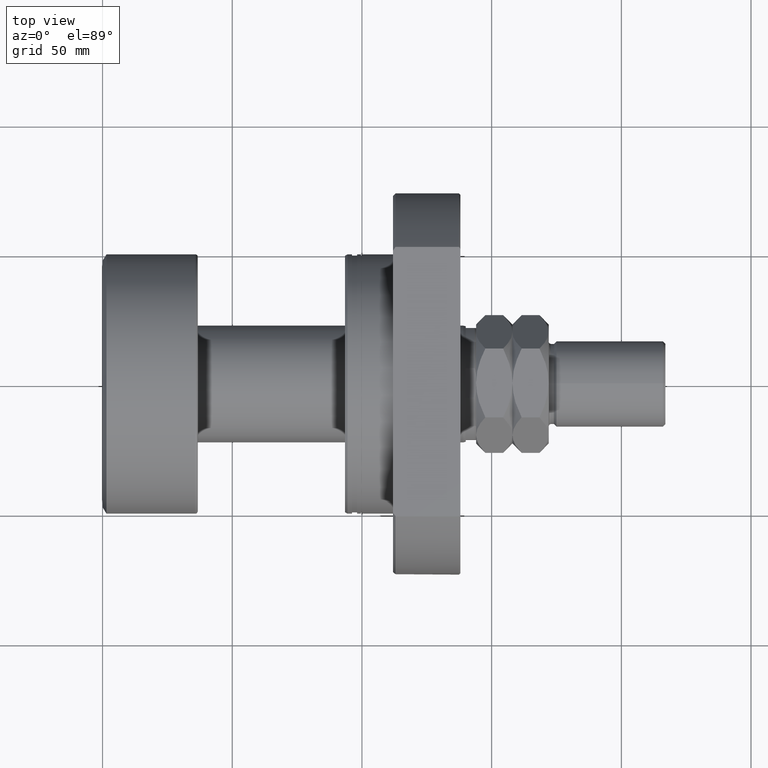
[diagram: clean part render]
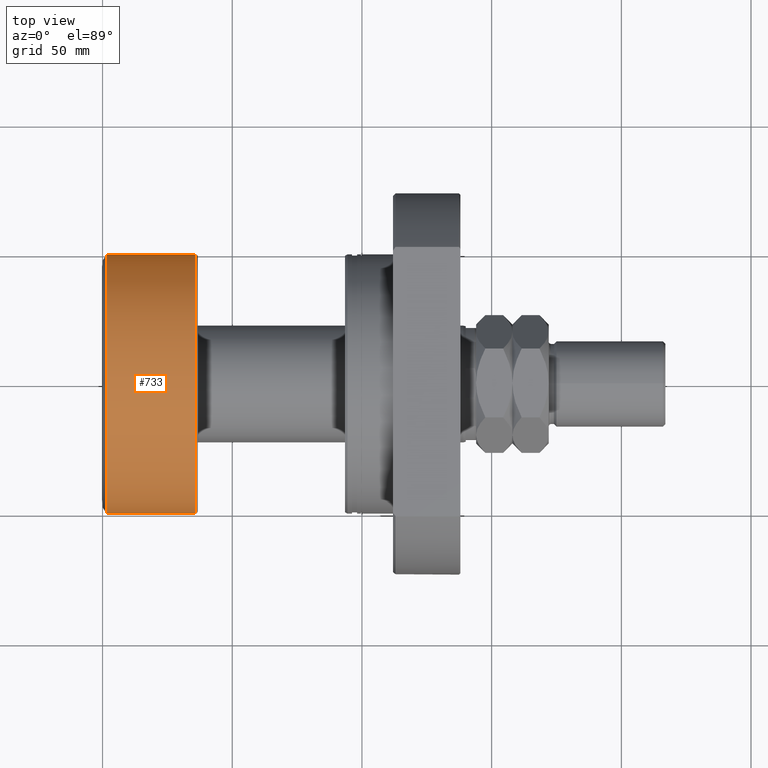
[diagram: same view with one face highlighted and labeled with its STEP entity id]
A machine part, top view. The second image highlights one B-rep face of the part: STEP entity #733.
In plain terms, the highlighted cylindrical surface (partial cylindrical patch) has radius 50 mm, axis along (-1, -0, -0).
Its self-contained STEP definition (entity closure, byte-faithful):
#128 = LINE ( 'NONE', #1266, #4272 ) ;
#202 = CARTESIAN_POINT ( 'NONE',  ( 35.70000000000000284, 50.00000000000000000, 6.123233995736766085E-15 ) ) ;
#395 = DIRECTION ( 'NONE',  ( -1.000000000000000000, -1.069542322069065801E-17, -0.000000000000000000 ) ) ;
#424 = ORIENTED_EDGE ( 'NONE', *, *, #1369, .F. ) ;
#472 = AXIS2_PLACEMENT_3D ( 'NONE', #2116, #1719, #3561 ) ;
#551 = AXIS2_PLACEMENT_3D ( 'NONE', #1321, #956, #2466 ) ;
#733 = ADVANCED_FACE ( 'NONE', ( #1440 ), #2203, .T. ) ;
#777 = CARTESIAN_POINT ( 'NONE',  ( 35.70000000000000284, -50.00000000000000000, 0.000000000000000000 ) ) ;
#840 = ORIENTED_EDGE ( 'NONE', *, *, #2247, .F. ) ;
#861 = AXIS2_PLACEMENT_3D ( 'NONE', #4048, #2948, #4460 ) ;
#956 = DIRECTION ( 'NONE',  ( -1.000000000000000000, -1.069542322069065801E-17, -0.000000000000000000 ) ) ;
#1266 = CARTESIAN_POINT ( 'NONE',  ( -5.347711610345329959E-16, 50.00000000000000000, 6.123233995736766085E-15 ) ) ;
#1321 = CARTESIAN_POINT ( 'NONE',  ( 35.70000000000000284, 3.818266089786565135E-16, 0.000000000000000000 ) ) ;
#1369 = EDGE_CURVE ( 'NONE', #1865, #3429, #2364, .T. ) ;
#1440 = FACE_OUTER_BOUND ( 'NONE', #3646, .T. ) ;
#1441 = CARTESIAN_POINT ( 'NONE',  ( 1.500000000000006217, -50.00000000000000000, 6.123233995736766085E-15 ) ) ;
#1719 = DIRECTION ( 'NONE',  ( -1.000000000000000000, -1.069542322069065801E-17, -0.000000000000000000 ) ) ;
#1865 = VERTEX_POINT ( 'NONE', #1441 ) ;
#1886 = ORIENTED_EDGE ( 'NONE', *, *, #2878, .T. ) ;
#1980 = VECTOR ( 'NONE', #395, 1000.000000000000000 ) ;
#1988 = DIRECTION ( 'NONE',  ( -1.000000000000000000, -1.069542322069065801E-17, -0.000000000000000000 ) ) ;
#2116 = CARTESIAN_POINT ( 'NONE',  ( 1.500000000000005995, 1.604313483103604941E-17, 0.000000000000000000 ) ) ;
#2203 = CYLINDRICAL_SURFACE ( 'NONE', #861, 50.00000000000000000 ) ;
#2247 = EDGE_CURVE ( 'NONE', #3055, #1865, #3489, .T. ) ;
#2364 = CIRCLE ( 'NONE', #472, 50.00000000000000000 ) ;
#2466 = DIRECTION ( 'NONE',  ( 0.000000000000000000, -1.000000000000000000, 0.000000000000000000 ) ) ;
#2588 = CIRCLE ( 'NONE', #551, 50.00000000000000000 ) ;
#2693 = CARTESIAN_POINT ( 'NONE',  ( 5.347711610345329959E-16, -50.00000000000000000, 0.000000000000000000 ) ) ;
#2878 = EDGE_CURVE ( 'NONE', #3055, #3276, #2588, .T. ) ;
#2948 = DIRECTION ( 'NONE',  ( -1.000000000000000000, -1.069542322069065801E-17, -0.000000000000000000 ) ) ;
#3055 = VERTEX_POINT ( 'NONE', #777 ) ;
#3276 = VERTEX_POINT ( 'NONE', #202 ) ;
#3429 = VERTEX_POINT ( 'NONE', #3441 ) ;
#3441 = CARTESIAN_POINT ( 'NONE',  ( 1.500000000000005551, 50.00000000000000000, 0.000000000000000000 ) ) ;
#3489 = LINE ( 'NONE', #2693, #1980 ) ;
#3561 = DIRECTION ( 'NONE',  ( 8.673617379884035472E-18, -1.000000000000000000, 0.000000000000000000 ) ) ;
#3580 = EDGE_CURVE ( 'NONE', #3276, #3429, #128, .T. ) ;
#3646 = EDGE_LOOP ( 'NONE', ( #1886, #4814, #424, #840 ) ) ;
#4048 = CARTESIAN_POINT ( 'NONE',  ( 0.000000000000000000, 0.000000000000000000, 0.000000000000000000 ) ) ;
#4272 = VECTOR ( 'NONE', #1988, 1000.000000000000000 ) ;
#4460 = DIRECTION ( 'NONE',  ( 1.069542322069065955E-17, -1.000000000000000000, 0.000000000000000000 ) ) ;
#4814 = ORIENTED_EDGE ( 'NONE', *, *, #3580, .T. ) ;